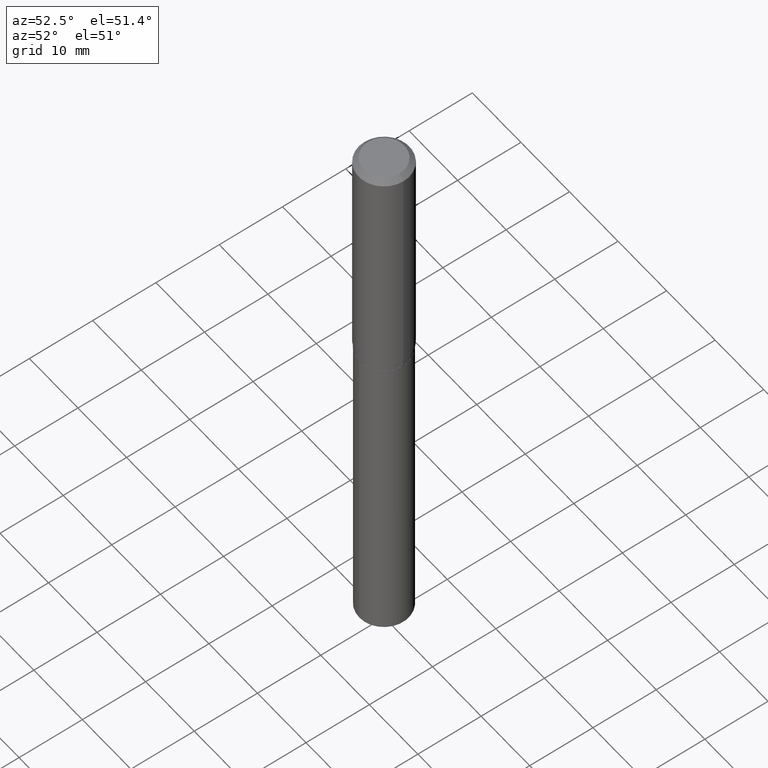
[diagram: clean part render]
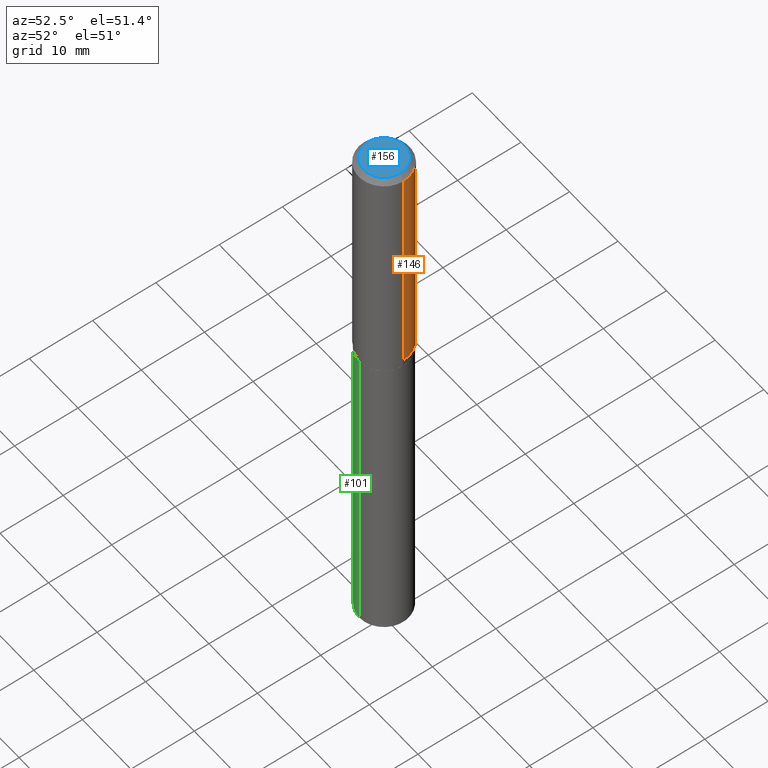
[diagram: same view with three faces highlighted in distinct colors, each labeled with its STEP entity id]
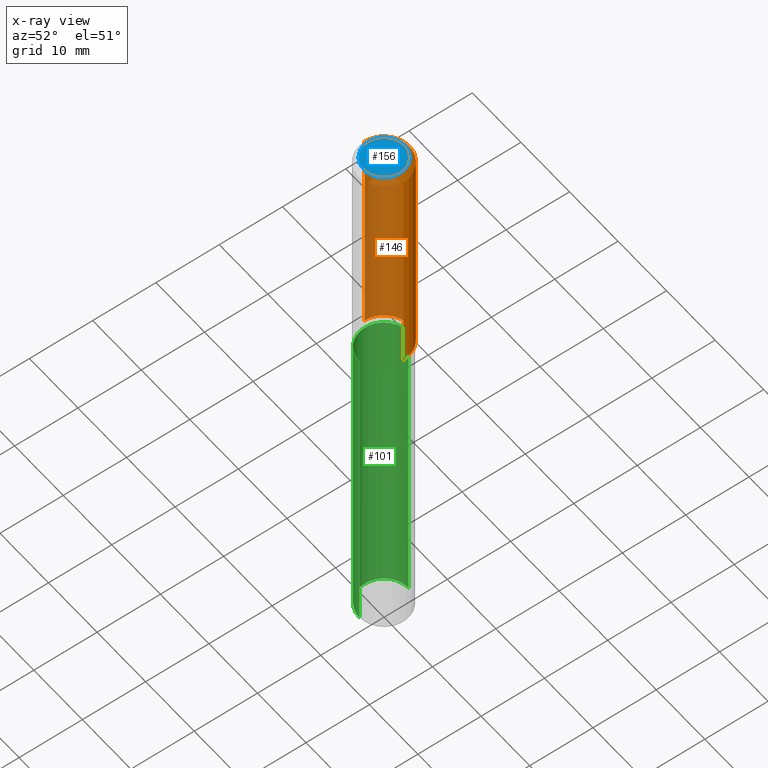
[diagram: x-ray of the same camera — body ghosted, the three highlighted faces saturated]
A machine part, auxiliary view with three faces highlighted in distinct colors.
The next image is the same camera in x-ray (body ghosted, the three faces saturated) — at least one of them is partly hidden behind the body in this view.
Their STEP definitions:

[orange] entity #146 — the highlighted cylindrical surface (edge-blend (fillet) strip) has radius 4.0005 mm, axis along (-0, 0, 1).
#6 = CYLINDRICAL_SURFACE ( 'NONE', #427, 0.1575000000000000844 ) ;
#24 = ORIENTED_EDGE ( 'NONE', *, *, #261, .F. ) ;
#55 = DIRECTION ( 'NONE',  ( -2.445468806185136877E-29, 3.491481338843145188E-15, 1.000000000000000000 ) ) ;
#59 = CARTESIAN_POINT ( 'NONE',  ( 0.1575000000000000011, -1.209798283909146741E-15, -0.03150000000000019451 ) ) ;
#69 = VERTEX_POINT ( 'NONE', #219 ) ;
#99 = CARTESIAN_POINT ( 'NONE',  ( 0.1575000000000000844, -1.099816621735587677E-15, 7.679978421878603638E-30 ) ) ;
#127 = CIRCLE ( 'NONE', #286, 0.1575000000000001676 ) ;
#146 = ADVANCED_FACE ( 'NONE', ( #195 ), #6, .T. ) ;
#168 = CIRCLE ( 'NONE', #446, 0.1575000000000000011 ) ;
#195 = FACE_OUTER_BOUND ( 'NONE', #251, .T. ) ;
#219 = CARTESIAN_POINT ( 'NONE',  ( 0.1575000000000001676, -6.148324063635832838E-15, -1.445949999999999624 ) ) ;
#226 = ORIENTED_EDGE ( 'NONE', *, *, #414, .T. ) ;
#230 = CARTESIAN_POINT ( 'NONE',  ( 0.000000000000000000, 0.000000000000000000, 0.000000000000000000 ) ) ;
#234 = DIRECTION ( 'NONE',  ( -2.445468806185136877E-29, 3.491481338843145188E-15, 1.000000000000000000 ) ) ;
#251 = EDGE_LOOP ( 'NONE', ( #226, #338, #406, #24 ) ) ;
#258 = VECTOR ( 'NONE', #55, 39.37007874015748143 ) ;
#261 = EDGE_CURVE ( 'NONE', #69, #290, #318, .T. ) ;
#263 = LINE ( 'NONE', #271, #323 ) ;
#271 = CARTESIAN_POINT ( 'NONE',  ( -0.1575000000000000844, 1.119104808822158392E-15, -7.747322767151481189E-30 ) ) ;
#286 = AXIS2_PLACEMENT_3D ( 'NONE', #350, #382, #416 ) ;
#290 = VERTEX_POINT ( 'NONE', #59 ) ;
#318 = LINE ( 'NONE', #99, #258 ) ;
#323 = VECTOR ( 'NONE', #234, 39.37007874015748143 ) ;
#331 = EDGE_CURVE ( 'NONE', #290, #381, #168, .T. ) ;
#338 = ORIENTED_EDGE ( 'NONE', *, *, #444, .T. ) ;
#343 = DIRECTION ( 'NONE',  ( -2.445468806185136597E-29, 3.491481338843145583E-15, 1.000000000000000000 ) ) ;
#349 = VERTEX_POINT ( 'NONE', #424 ) ;
#350 = CARTESIAN_POINT ( 'NONE',  ( 3.536025620303397046E-29, -5.048507441900244569E-15, -1.445949999999999624 ) ) ;
#379 = DIRECTION ( 'NONE',  ( 1.000000000000000000, -6.982962677686267499E-15, 4.876176775795936353E-29 ) ) ;
#381 = VERTEX_POINT ( 'NONE', #455 ) ;
#382 = DIRECTION ( 'NONE',  ( -2.445468806185136597E-29, 3.491481338843145583E-15, 1.000000000000000000 ) ) ;
#406 = ORIENTED_EDGE ( 'NONE', *, *, #331, .F. ) ;
#414 = EDGE_CURVE ( 'NONE', #69, #349, #127, .T. ) ;
#416 = DIRECTION ( 'NONE',  ( 1.000000000000000000, -6.982962677686267499E-15, 0.000000000000000000 ) ) ;
#424 = CARTESIAN_POINT ( 'NONE',  ( -0.1575000000000001676, -3.929402633078086177E-15, -1.445949999999999624 ) ) ;
#427 = AXIS2_PLACEMENT_3D ( 'NONE', #230, #343, #379 ) ;
#429 = CARTESIAN_POINT ( 'NONE',  ( 7.703226739483226971E-31, -1.099816621735597538E-16, -0.03150000000000019451 ) ) ;
#432 = DIRECTION ( 'NONE',  ( 1.000000000000000000, -6.982962677686265922E-15, 0.000000000000000000 ) ) ;
#444 = EDGE_CURVE ( 'NONE', #349, #381, #263, .T. ) ;
#446 = AXIS2_PLACEMENT_3D ( 'NONE', #429, #465, #432 ) ;
#455 = CARTESIAN_POINT ( 'NONE',  ( -0.1575000000000000011, -1.460139743214743621E-15, -0.03150000000000019451 ) ) ;
#465 = DIRECTION ( 'NONE',  ( -2.445468806185136597E-29, 3.491481338843145583E-15, 1.000000000000000000 ) ) ;

[blue] entity #156 — the highlighted planar face has unit normal (0, -0, -1).
#21 = ORIENTED_EDGE ( 'NONE', *, *, #242, .T. ) ;
#103 = ORIENTED_EDGE ( 'NONE', *, *, #311, .T. ) ;
#149 = VERTEX_POINT ( 'NONE', #486 ) ;
#156 = ADVANCED_FACE ( 'NONE', ( #312 ), #306, .F. ) ;
#163 = DIRECTION ( 'NONE',  ( 2.438088387897960049E-29, -3.491481338843145188E-15, -1.000000000000000000 ) ) ;
#182 = AXIS2_PLACEMENT_3D ( 'NONE', #248, #395, #246 ) ;
#198 = CARTESIAN_POINT ( 'NONE',  ( 0.1260000000000000009, -1.027466422270894443E-15, 3.860086710919128072E-18 ) ) ;
#233 = VERTEX_POINT ( 'NONE', #198 ) ;
#237 = CARTESIAN_POINT ( 'NONE',  ( -9.439721640706201686E-47, 1.347742071746726764E-32, 3.860086710912459732E-18 ) ) ;
#242 = EDGE_CURVE ( 'NONE', #233, #149, #440, .T. ) ;
#246 = DIRECTION ( 'NONE',  ( 1.000000000000000000, -6.982962677686265922E-15, 4.876281427513067258E-29 ) ) ;
#248 = CARTESIAN_POINT ( 'NONE',  ( -9.439721640706201686E-47, 1.347742071746726764E-32, 3.860086710912459732E-18 ) ) ;
#306 = PLANE ( 'NONE',  #474 ) ;
#311 = EDGE_CURVE ( 'NONE', #149, #233, #463, .T. ) ;
#312 = FACE_OUTER_BOUND ( 'NONE', #403, .T. ) ;
#340 = AXIS2_PLACEMENT_3D ( 'NONE', #237, #348, #462 ) ;
#348 = DIRECTION ( 'NONE',  ( -2.445468806185136597E-29, 3.491481338843145583E-15, 1.000000000000000000 ) ) ;
#351 = DIRECTION ( 'NONE',  ( -1.000000000000000000, 6.982962677686265922E-15, -4.876176775795935793E-29 ) ) ;
#395 = DIRECTION ( 'NONE',  ( -2.445468806185136597E-29, 3.491481338843145583E-15, 1.000000000000000000 ) ) ;
#403 = EDGE_LOOP ( 'NONE', ( #103, #21 ) ) ;
#440 = CIRCLE ( 'NONE', #340, 0.1260000000000000009 ) ;
#462 = DIRECTION ( 'NONE',  ( 1.000000000000000000, -6.982962677686265922E-15, 4.876281427513067258E-29 ) ) ;
#463 = CIRCLE ( 'NONE', #182, 0.1260000000000000009 ) ;
#474 = AXIS2_PLACEMENT_3D ( 'NONE', #490, #163, #351 ) ;
#486 = CARTESIAN_POINT ( 'NONE',  ( -0.1260000000000000009, 9.348441284752484904E-16, 3.860086710906114178E-18 ) ) ;
#490 = CARTESIAN_POINT ( 'NONE',  ( -4.719860820353100843E-47, 6.738710358733633822E-33, 1.930043355456229866E-18 ) ) ;

[green] entity #101 — the highlighted cylindrical surface (edge-blend (fillet) strip) has radius 3.9002 mm, axis along (-0, 0, 1).
#18 = CIRCLE ( 'NONE', #322, 0.1535499999999999921 ) ;
#29 = AXIS2_PLACEMENT_3D ( 'NONE', #458, #159, #487 ) ;
#39 = DIRECTION ( 'NONE',  ( -2.445425864037539356E-29, 3.491542834442619101E-15, 1.000000000000000000 ) ) ;
#47 = FACE_OUTER_BOUND ( 'NONE', #324, .T. ) ;
#80 = EDGE_CURVE ( 'NONE', #145, #438, #153, .T. ) ;
#81 = CARTESIAN_POINT ( 'NONE',  ( -1.072233919158689464E-15, -0.1535500000000052101, -1.496399999999999730 ) ) ;
#101 = ADVANCED_FACE ( 'NONE', ( #47 ), #204, .T. ) ;
#106 = EDGE_CURVE ( 'NONE', #145, #148, #384, .T. ) ;
#111 = CARTESIAN_POINT ( 'NONE',  ( 8.614113659727150251E-29, -1.229892014770123314E-14, -3.522515046469325561 ) ) ;
#125 = VECTOR ( 'NONE', #39, 39.37007874015748143 ) ;
#129 = CARTESIAN_POINT ( 'NONE',  ( -1.072233919158639569E-15, -0.1535500000000122045, -3.522515046469325117 ) ) ;
#145 = VERTEX_POINT ( 'NONE', #422 ) ;
#148 = VERTEX_POINT ( 'NONE', #450 ) ;
#153 = CIRCLE ( 'NONE', #266, 0.1535499999999999643 ) ;
#159 = DIRECTION ( 'NONE',  ( -2.445425864037539637E-29, 3.491542834442619495E-15, 1.000000000000000000 ) ) ;
#180 = ORIENTED_EDGE ( 'NONE', *, *, #482, .T. ) ;
#204 = CYLINDRICAL_SURFACE ( 'NONE', #29, 0.1535499999999999921 ) ;
#206 = DIRECTION ( 'NONE',  ( -2.445425864037539637E-29, 3.491542834442619495E-15, 1.000000000000000000 ) ) ;
#208 = VECTOR ( 'NONE', #211, 39.37007874015748143 ) ;
#211 = DIRECTION ( 'NONE',  ( -2.445425864037539356E-29, 3.491542834442619101E-15, 1.000000000000000000 ) ) ;
#213 = LINE ( 'NONE', #326, #208 ) ;
#214 = CARTESIAN_POINT ( 'NONE',  ( 3.659399521575438742E-29, -5.224652675444883351E-15, -1.496400000000000174 ) ) ;
#218 = ORIENTED_EDGE ( 'NONE', *, *, #330, .F. ) ;
#221 = ORIENTED_EDGE ( 'NONE', *, *, #80, .T. ) ;
#266 = AXIS2_PLACEMENT_3D ( 'NONE', #111, #367, #371 ) ;
#289 = DIRECTION ( 'NONE',  ( -6.982962677686266711E-15, -1.000000000000000000, 3.558252026915354491E-15 ) ) ;
#322 = AXIS2_PLACEMENT_3D ( 'NONE', #214, #206, #289 ) ;
#324 = EDGE_LOOP ( 'NONE', ( #329, #221, #180, #218 ) ) ;
#326 = CARTESIAN_POINT ( 'NONE',  ( -1.072233919158689464E-15, -0.1535500000000052101, -1.496399999999999730 ) ) ;
#329 = ORIENTED_EDGE ( 'NONE', *, *, #106, .F. ) ;
#330 = EDGE_CURVE ( 'NONE', #148, #435, #18, .T. ) ;
#367 = DIRECTION ( 'NONE',  ( -2.445425864037539637E-29, 3.491542834442619495E-15, 1.000000000000000000 ) ) ;
#371 = DIRECTION ( 'NONE',  ( -6.982962677686266711E-15, -1.000000000000000000, 3.558252026915355280E-15 ) ) ;
#380 = CARTESIAN_POINT ( 'NONE',  ( 1.091038370759670264E-15, 0.1535499999999947740, -1.496400000000000841 ) ) ;
#384 = LINE ( 'NONE', #380, #125 ) ;
#422 = CARTESIAN_POINT ( 'NONE',  ( 1.091038370759719370E-15, 0.1535499999999876686, -3.522515046469326450 ) ) ;
#435 = VERTEX_POINT ( 'NONE', #81 ) ;
#438 = VERTEX_POINT ( 'NONE', #129 ) ;
#450 = CARTESIAN_POINT ( 'NONE',  ( 1.091038370759720356E-15, 0.1535499999999947740, -1.496400000000000841 ) ) ;
#458 = CARTESIAN_POINT ( 'NONE',  ( 3.659399521575438742E-29, -5.224652675444883351E-15, -1.496400000000000174 ) ) ;
#482 = EDGE_CURVE ( 'NONE', #438, #435, #213, .T. ) ;
#487 = DIRECTION ( 'NONE',  ( -6.982962677686266711E-15, -1.000000000000000000, 3.558252026915354491E-15 ) ) ;